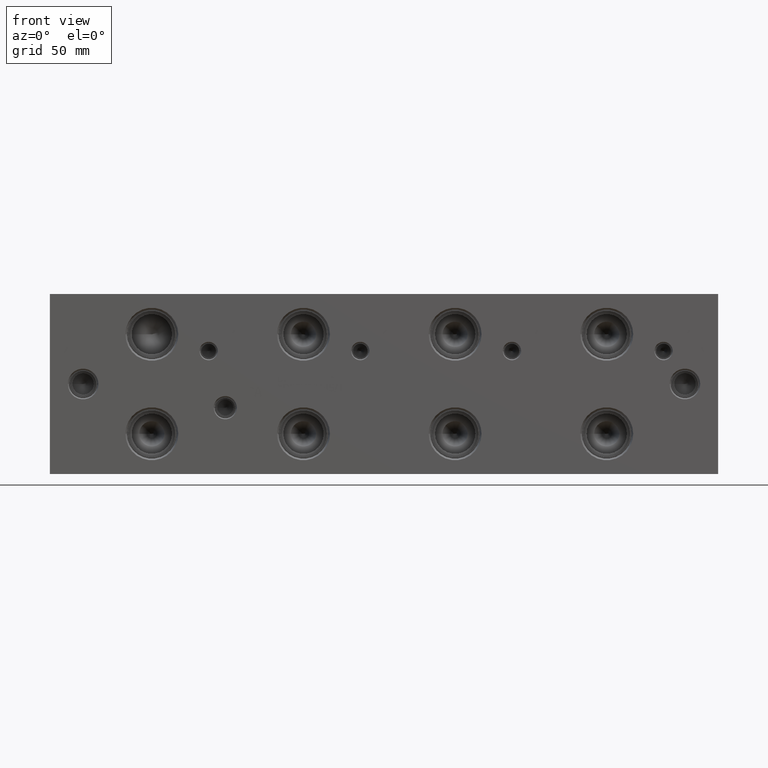
[diagram: clean part render]
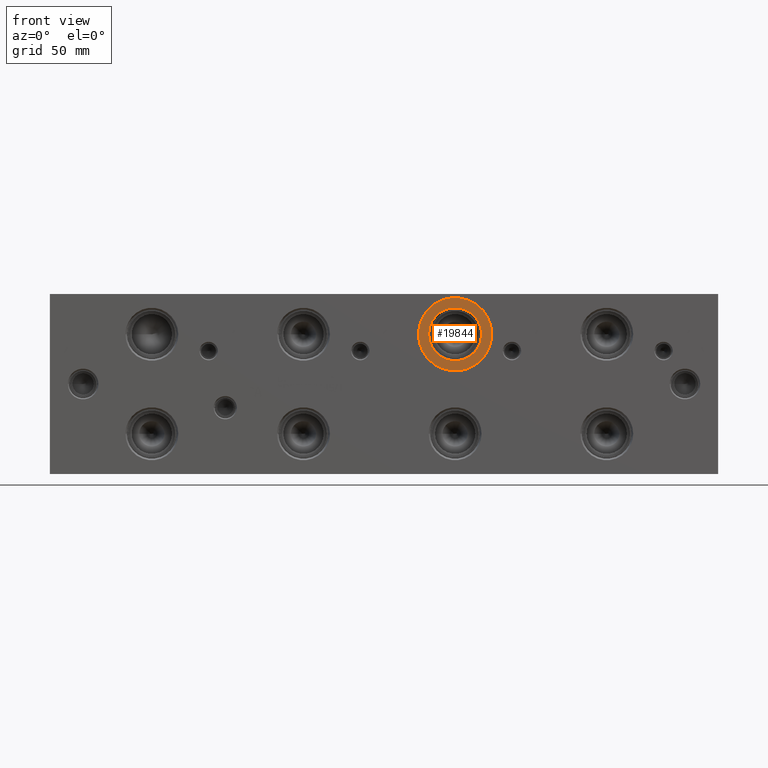
[diagram: same view with one face highlighted and labeled with its STEP entity id]
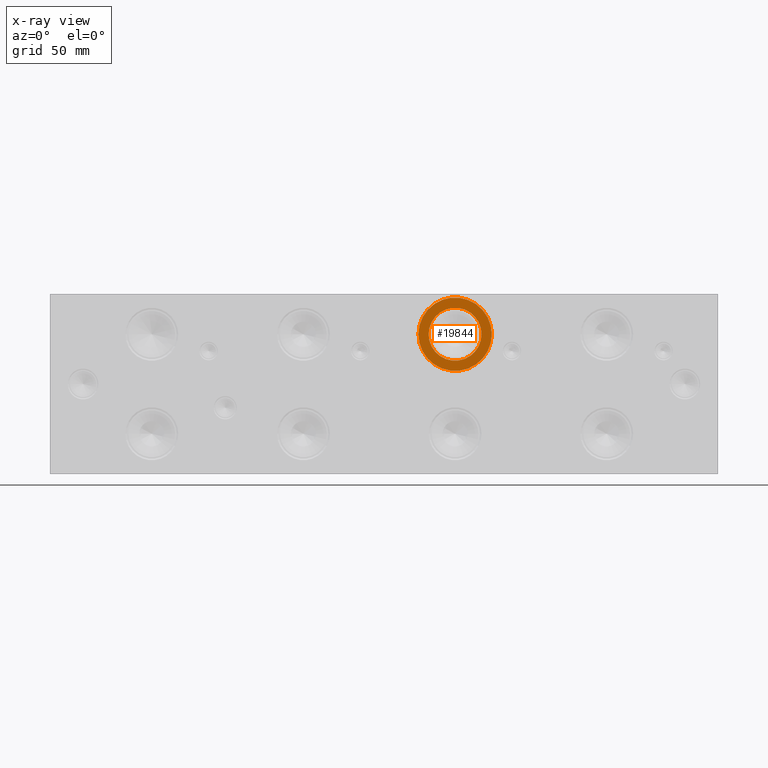
[diagram: x-ray of the same camera — body ghosted, the highlighted face saturated]
A machine part, front view. The second image highlights one B-rep face of the part: STEP entity #19844.
The next image is the same camera in x-ray: the body ghosted, the highlighted face saturated — about 0% of this face is hidden behind the body in this view.
In plain terms, the highlighted planar face has unit normal (0, -1, 0).
Its self-contained STEP definition (entity closure, byte-faithful):
#630=CIRCLE('',#21034,24.5618);
#631=CIRCLE('',#21035,24.5618);
#632=CIRCLE('',#21036,17.7546);
#1182=FACE_BOUND('',#3694,.T.);
#2522=FACE_OUTER_BOUND('',#3693,.T.);
#3693=EDGE_LOOP('',(#16497,#16498));
#3694=EDGE_LOOP('',(#16499));
#9039=VERTEX_POINT('',#33045);
#9040=VERTEX_POINT('',#33046);
#9041=VERTEX_POINT('',#33049);
#11664=EDGE_CURVE('',#9039,#9040,#630,.T.);
#11665=EDGE_CURVE('',#9040,#9039,#631,.T.);
#11666=EDGE_CURVE('',#9041,#9041,#632,.T.);
#16497=ORIENTED_EDGE('',*,*,#11664,.T.);
#16498=ORIENTED_EDGE('',*,*,#11665,.T.);
#16499=ORIENTED_EDGE('',*,*,#11666,.F.);
#18394=PLANE('',#21033);
#19844=ADVANCED_FACE('',(#2522,#1182),#18394,.T.);
#21033=AXIS2_PLACEMENT_3D('',#33044,#25100,#25101);
#21034=AXIS2_PLACEMENT_3D('',#33047,#25102,#25103);
#21035=AXIS2_PLACEMENT_3D('',#33048,#25104,#25105);
#21036=AXIS2_PLACEMENT_3D('',#33050,#25106,#25107);
#25100=DIRECTION('center_axis',(0.,-1.,0.));
#25101=DIRECTION('ref_axis',(1.,0.,0.));
#25102=DIRECTION('center_axis',(0.,-1.,0.));
#25103=DIRECTION('ref_axis',(1.,0.,0.));
#25104=DIRECTION('center_axis',(0.,-1.,0.));
#25105=DIRECTION('ref_axis',(1.,0.,0.));
#25106=DIRECTION('center_axis',(0.,-1.,0.));
#25107=DIRECTION('ref_axis',(1.,0.,0.));
#33044=CARTESIAN_POINT('Origin',(271.4752,0.7874,93.6498));
#33045=CARTESIAN_POINT('',(296.037,0.7874,93.6498));
#33046=CARTESIAN_POINT('',(246.9134,0.7874,93.6498));
#33047=CARTESIAN_POINT('Origin',(271.4752,0.7874,93.6498));
#33048=CARTESIAN_POINT('Origin',(271.4752,0.7874,93.6498));
#33049=CARTESIAN_POINT('',(253.7206,0.7874,93.6498));
#33050=CARTESIAN_POINT('Origin',(271.4752,0.7874,93.6498));